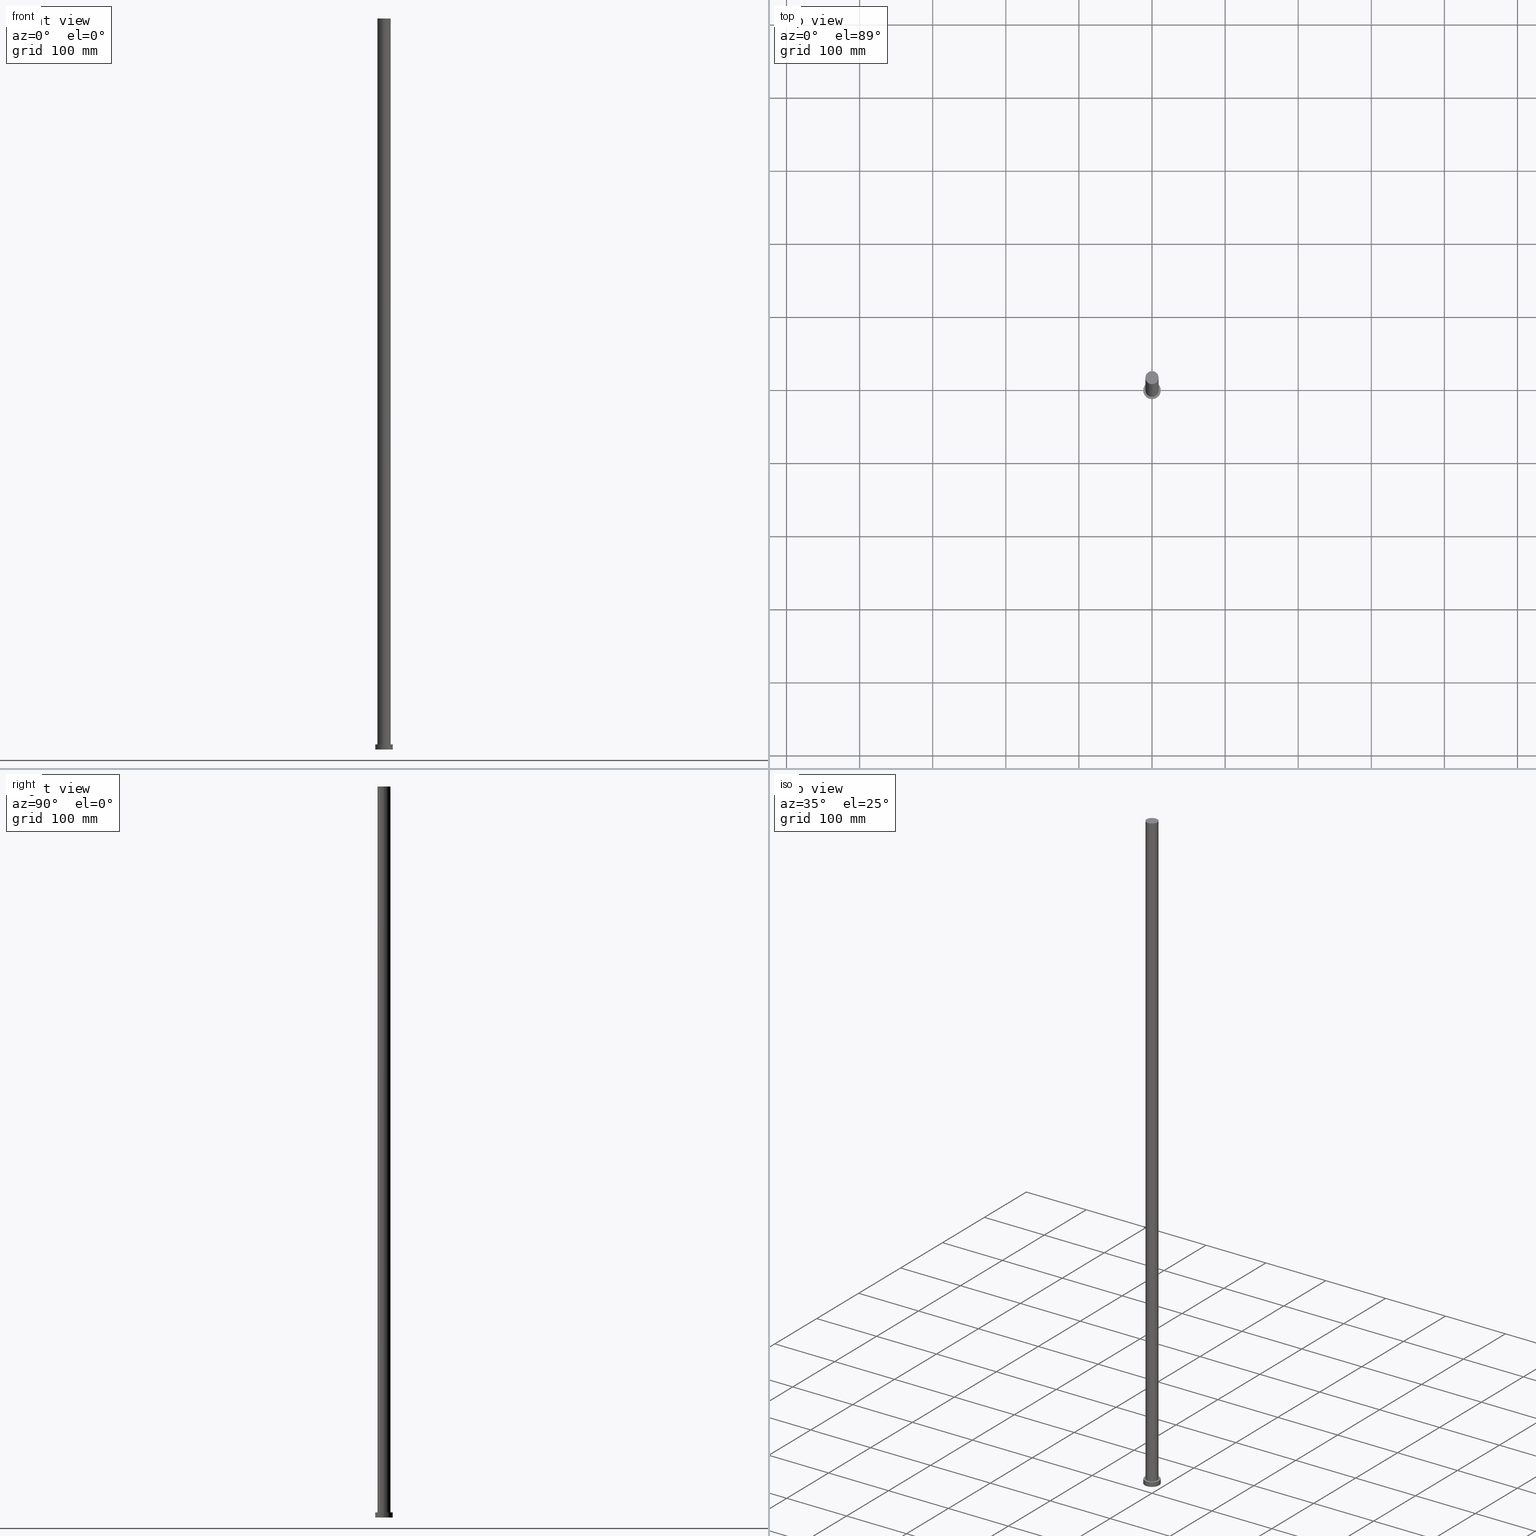
[diagram: canonical four-view strip — front | top / right | iso, engineering-drawing reading convention]
A machine part, canonical four-view strip (front | top / right | iso — engineering-drawing reading convention). The complete STEP part file that produces these views, byte-faithful:
ISO-10303-21;
HEADER;
FILE_DESCRIPTION (( 'STEP AP203' ),
    '1' );
FILE_NAME ('8656.STEP',
    '2023-02-12T10:33:47',
    ( '' ),
    ( '' ),
    'SwSTEP 2.0',
    'SolidWorks 2019',
    '' );
FILE_SCHEMA (( 'CONFIG_CONTROL_DESIGN' ));
ENDSEC;

DATA;
#1 = PERSON_AND_ORGANIZATION_ROLE ( 'classification_officer' ) ;
#2 = ORIENTED_EDGE ( 'NONE', *, *, #97, .T. ) ;
#3 = COORDINATED_UNIVERSAL_TIME_OFFSET ( 1, 0, .AHEAD. ) ;
#4 = EDGE_LOOP ( 'NONE', ( #244, #44 ) ) ;
#5 = APPLICATION_PROTOCOL_DEFINITION ( 'international standard', 'config_control_design', 1994, #65 ) ;
#6 = LOCAL_TIME ( 11, 33, 47.00000000000000000, #219 ) ;
#7 = ORIENTED_EDGE ( 'NONE', *, *, #205, .T. ) ;
#8 = COORDINATED_UNIVERSAL_TIME_OFFSET ( 1, 0, .AHEAD. ) ;
#9 = CIRCLE ( 'NONE', #123, 12.00000000000000178 ) ;
#10 = CARTESIAN_POINT ( 'NONE',  ( 12.00000000000000178, 1.469576158976824144E-15, 7.000000000000000000 ) ) ;
#11 = CARTESIAN_POINT ( 'NONE',  ( 0.000000000000000000, 0.000000000000000000, 1000.000000000000000 ) ) ;
#12 =( NAMED_UNIT ( * ) PLANE_ANGLE_UNIT ( ) SI_UNIT ( $, .RADIAN. ) );
#13 = DIRECTION ( 'NONE',  ( 0.000000000000000000, 0.000000000000000000, 1.000000000000000000 ) ) ;
#14 = DIRECTION ( 'NONE',  ( 1.000000000000000000, 0.000000000000000000, 0.000000000000000000 ) ) ;
#15 = AXIS2_PLACEMENT_3D ( 'NONE', #197, #146, #127 ) ;
#16 = PERSON_AND_ORGANIZATION_ROLE ( 'creator' ) ;
#17 = EDGE_LOOP ( 'NONE', ( #87, #218 ) ) ;
#18 = DATE_TIME_ROLE ( 'creation_date' ) ;
#19 = ORIENTED_EDGE ( 'NONE', *, *, #28, .F. ) ;
#20 = CC_DESIGN_DATE_AND_TIME_ASSIGNMENT ( #186, #18, ( #107 ) ) ;
#21 = PERSON_AND_ORGANIZATION ( #122, #220 ) ;
#22 = ORIENTED_EDGE ( 'NONE', *, *, #58, .F. ) ;
#23 = ORIENTED_EDGE ( 'NONE', *, *, #245, .T. ) ;
#24 = LINE ( 'NONE', #77, #118 ) ;
#25 = AXIS2_PLACEMENT_3D ( 'NONE', #11, #52, #142 ) ;
#26 = FACE_OUTER_BOUND ( 'NONE', #89, .T. ) ;
#27 = CARTESIAN_POINT ( 'NONE',  ( 9.000000000000000000, 1.102182119232617714E-15, 1000.000000000000000 ) ) ;
#28 = EDGE_CURVE ( 'NONE', #184, #47, #191, .T. ) ;
#29 = DIRECTION ( 'NONE',  ( -1.000000000000000000, 0.000000000000000000, 0.000000000000000000 ) ) ;
#30 = FACE_BOUND ( 'NONE', #4, .T. ) ;
#31 = LOCAL_TIME ( 11, 33, 47.00000000000000000, #8 ) ;
#32 = CARTESIAN_POINT ( 'NONE',  ( 0.000000000000000000, 0.000000000000000000, 0.000000000000000000 ) ) ;
#33 = CC_DESIGN_DATE_AND_TIME_ASSIGNMENT ( #241, #40, ( #62 ) ) ;
#34 = AXIS2_PLACEMENT_3D ( 'NONE', #81, #234, #55 ) ;
#35 = CIRCLE ( 'NONE', #125, 12.00000000000000178 ) ;
#36 = CARTESIAN_POINT ( 'NONE',  ( -9.000000000000000000, 0.000000000000000000, 1000.000000000000000 ) ) ;
#37 = DIRECTION ( 'NONE',  ( 0.000000000000000000, 0.000000000000000000, 1.000000000000000000 ) ) ;
#38 = APPROVAL_DATE_TIME ( #135, #137 ) ;
#39 = CC_DESIGN_APPROVAL ( #233, ( #62 ) ) ;
#40 = DATE_TIME_ROLE ( 'classification_date' ) ;
#41 = EDGE_CURVE ( 'NONE', #187, #225, #54, .T. ) ;
#42 = APPROVAL_STATUS ( 'not_yet_approved' ) ;
#43 = PERSON_AND_ORGANIZATION ( #122, #220 ) ;
#44 = ORIENTED_EDGE ( 'NONE', *, *, #240, .F. ) ;
#45 = AXIS2_PLACEMENT_3D ( 'NONE', #163, #13, #100 ) ;
#46 = AXIS2_PLACEMENT_3D ( 'NONE', #144, #164, #63 ) ;
#47 = VERTEX_POINT ( 'NONE', #138 ) ;
#48 = DIRECTION ( 'NONE',  ( -0.000000000000000000, -0.000000000000000000, -1.000000000000000000 ) ) ;
#49 = CARTESIAN_POINT ( 'NONE',  ( 0.000000000000000000, 0.000000000000000000, 1000.000000000000000 ) ) ;
#50 = AXIS2_PLACEMENT_3D ( 'NONE', #230, #179, #60 ) ;
#51 = CC_DESIGN_APPROVAL ( #137, ( #56 ) ) ;
#52 = DIRECTION ( 'NONE',  ( 0.000000000000000000, 0.000000000000000000, 1.000000000000000000 ) ) ;
#53 = UNCERTAINTY_MEASURE_WITH_UNIT (LENGTH_MEASURE( 1.000000000000000082E-05 ), #98, 'distance_accuracy_value', 'NONE');
#54 = LINE ( 'NONE', #173, #201 ) ;
#55 = DIRECTION ( 'NONE',  ( -1.000000000000000000, 0.000000000000000000, 0.000000000000000000 ) ) ;
#56 = PRODUCT_DEFINITION_FORMATION_WITH_SPECIFIED_SOURCE ( 'LIBOVOLN�', '', #57, .NOT_KNOWN. ) ;
#57 = PRODUCT ( '8656', '8656', '', ( #108 ) ) ;
#58 = EDGE_CURVE ( 'NONE', #223, #133, #177, .T. ) ;
#59 = DIRECTION ( 'NONE',  ( 1.000000000000000000, 0.000000000000000000, 0.000000000000000000 ) ) ;
#60 = DIRECTION ( 'NONE',  ( 1.000000000000000000, 0.000000000000000000, 0.000000000000000000 ) ) ;
#61 = PLANE ( 'NONE',  #185 ) ;
#62 = SECURITY_CLASSIFICATION ( '', '', #116 ) ;
#63 = DIRECTION ( 'NONE',  ( -1.000000000000000000, 0.000000000000000000, 0.000000000000000000 ) ) ;
#64 = COORDINATED_UNIVERSAL_TIME_OFFSET ( 1, 0, .AHEAD. ) ;
#65 = APPLICATION_CONTEXT ( 'configuration controlled 3d designs of mechanical parts and assemblies' ) ;
#66 = CC_DESIGN_PERSON_AND_ORGANIZATION_ASSIGNMENT ( #105, #1, ( #62 ) ) ;
#67 = CALENDAR_DATE ( 2023, 12, 2 ) ;
#68 = ORIENTED_EDGE ( 'NONE', *, *, #129, .T. ) ;
#69 = ORIENTED_EDGE ( 'NONE', *, *, #28, .T. ) ;
#70 = ORIENTED_EDGE ( 'NONE', *, *, #75, .F. ) ;
#71 = AXIS2_PLACEMENT_3D ( 'NONE', #161, #158, #178 ) ;
#72 = ORIENTED_EDGE ( 'NONE', *, *, #205, .F. ) ;
#73 = CYLINDRICAL_SURFACE ( 'NONE', #99, 12.00000000000000178 ) ;
#74 = APPROVAL_ROLE ( '' ) ;
#75 = EDGE_CURVE ( 'NONE', #223, #187, #94, .T. ) ;
#76 = DESIGN_CONTEXT ( 'detailed design', #65, 'design' ) ;
#77 = CARTESIAN_POINT ( 'NONE',  ( -12.00000000000000178, 0.000000000000000000, 7.000000000000000000 ) ) ;
#78 = CARTESIAN_POINT ( 'NONE',  ( -12.00000000000000178, 0.000000000000000000, 7.000000000000000000 ) ) ;
#79 = CLOSED_SHELL ( 'NONE', ( #172, #181, #85, #119, #229, #93, #212 ) ) ;
#80 = FACE_OUTER_BOUND ( 'NONE', #153, .T. ) ;
#81 = CARTESIAN_POINT ( 'NONE',  ( 0.000000000000000000, 0.000000000000000000, 1000.000000000000000 ) ) ;
#82 = CC_DESIGN_PERSON_AND_ORGANIZATION_ASSIGNMENT ( #248, #128, ( #56 ) ) ;
#83 = FACE_OUTER_BOUND ( 'NONE', #109, .T. ) ;
#84 = LOCAL_TIME ( 11, 33, 47.00000000000000000, #64 ) ;
#85 = ADVANCED_FACE ( 'NONE', ( #206 ), #73, .T. ) ;
#86 = APPROVAL_DATE_TIME ( #222, #134 ) ;
#87 = ORIENTED_EDGE ( 'NONE', *, *, #175, .F. ) ;
#88 = APPLICATION_PROTOCOL_DEFINITION ( 'international standard', 'config_control_design', 1994, #96 ) ;
#89 = EDGE_LOOP ( 'NONE', ( #68, #7 ) ) ;
#90 = ORIENTED_EDGE ( 'NONE', *, *, #129, .F. ) ;
#91 = ORIENTED_EDGE ( 'NONE', *, *, #75, .T. ) ;
#92 = CALENDAR_DATE ( 2023, 12, 2 ) ;
#93 = ADVANCED_FACE ( 'NONE', ( #117 ), #157, .T. ) ;
#94 = CIRCLE ( 'NONE', #25, 9.000000000000000000 ) ;
#95 =( GEOMETRIC_REPRESENTATION_CONTEXT ( 3 ) GLOBAL_UNCERTAINTY_ASSIGNED_CONTEXT ( ( #53 ) ) GLOBAL_UNIT_ASSIGNED_CONTEXT ( ( #98, #12, #196 ) ) REPRESENTATION_CONTEXT ( 'NONE', 'WORKASPACE' ) );
#96 = APPLICATION_CONTEXT ( 'configuration controlled 3d designs of mechanical parts and assemblies' ) ;
#97 = EDGE_CURVE ( 'NONE', #168, #203, #24, .T. ) ;
#98 =( LENGTH_UNIT ( ) NAMED_UNIT ( * ) SI_UNIT ( .MILLI., .METRE. ) );
#99 = AXIS2_PLACEMENT_3D ( 'NONE', #155, #143, #29 ) ;
#100 = DIRECTION ( 'NONE',  ( 1.000000000000000000, 0.000000000000000000, 0.000000000000000000 ) ) ;
#101 = AXIS2_PLACEMENT_3D ( 'NONE', #169, #165, #111 ) ;
#102 = CC_DESIGN_PERSON_AND_ORGANIZATION_ASSIGNMENT ( #21, #199, ( #107 ) ) ;
#103 = DIRECTION ( 'NONE',  ( 1.000000000000000000, 0.000000000000000000, -0.000000000000000000 ) ) ;
#104 = CARTESIAN_POINT ( 'NONE',  ( 0.000000000000000000, 0.000000000000000000, 7.000000000000000000 ) ) ;
#105 = PERSON_AND_ORGANIZATION ( #122, #220 ) ;
#106 = ORIENTED_EDGE ( 'NONE', *, *, #41, .F. ) ;
#107 = PRODUCT_DEFINITION ( 'NEZN�M�', '', #56, #76 ) ;
#108 = MECHANICAL_CONTEXT ( 'NONE', #96, 'mechanical' ) ;
#109 = EDGE_LOOP ( 'NONE', ( #70, #183, #150, #106 ) ) ;
#110 = PERSON_AND_ORGANIZATION ( #122, #220 ) ;
#111 = DIRECTION ( 'NONE',  ( 1.000000000000000000, 0.000000000000000000, 0.000000000000000000 ) ) ;
#112 = EDGE_LOOP ( 'NONE', ( #171, #91 ) ) ;
#113 = CARTESIAN_POINT ( 'NONE',  ( 0.000000000000000000, 0.000000000000000000, 7.000000000000000000 ) ) ;
#114 = PRODUCT_RELATED_PRODUCT_CATEGORY ( 'detail', '', ( #57 ) ) ;
#115 = DIRECTION ( 'NONE',  ( 0.000000000000000000, 0.000000000000000000, 1.000000000000000000 ) ) ;
#116 = SECURITY_CLASSIFICATION_LEVEL ( 'unclassified' ) ;
#117 = FACE_OUTER_BOUND ( 'NONE', #226, .T. ) ;
#118 = VECTOR ( 'NONE', #211, 1000.000000000000000 ) ;
#119 = ADVANCED_FACE ( 'NONE', ( #30, #26 ), #139, .T. ) ;
#120 = DIRECTION ( 'NONE',  ( 0.000000000000000000, 0.000000000000000000, 1.000000000000000000 ) ) ;
#121 = DIRECTION ( 'NONE',  ( 0.000000000000000000, 0.000000000000000000, 1.000000000000000000 ) ) ;
#122 = PERSON ( 'NEUR�EN�', 'NEUR�EN�', 'NEUR�EN�', ('NEUR�EN�'), ('NEUR�EN�'), ('NEUR�EN�') ) ;
#123 = AXIS2_PLACEMENT_3D ( 'NONE', #193, #37, #238 ) ;
#124 = CYLINDRICAL_SURFACE ( 'NONE', #46, 12.00000000000000178 ) ;
#125 = AXIS2_PLACEMENT_3D ( 'NONE', #32, #120, #59 ) ;
#126 = PLANE ( 'NONE',  #15 ) ;
#127 = DIRECTION ( 'NONE',  ( 1.000000000000000000, 0.000000000000000000, -0.000000000000000000 ) ) ;
#128 = PERSON_AND_ORGANIZATION_ROLE ( 'design_supplier' ) ;
#129 = EDGE_CURVE ( 'NONE', #168, #184, #207, .T. ) ;
#130 = ORIENTED_EDGE ( 'NONE', *, *, #159, .F. ) ;
#131 = PERSON_AND_ORGANIZATION ( #122, #220 ) ;
#132 = SHAPE_DEFINITION_REPRESENTATION ( #194, #162 ) ;
#133 = VERTEX_POINT ( 'NONE', #160 ) ;
#134 = APPROVAL ( #42, 'NEUR�EN�' ) ;
#135 = DATE_AND_TIME ( #239, #31 ) ;
#136 = ORIENTED_EDGE ( 'NONE', *, *, #175, .T. ) ;
#137 = APPROVAL ( #210, 'NEUR�EN�' ) ;
#138 = CARTESIAN_POINT ( 'NONE',  ( 12.00000000000000178, 1.469576158976824144E-15, 0.000000000000000000 ) ) ;
#139 = PLANE ( 'NONE',  #152 ) ;
#140 = AXIS2_PLACEMENT_3D ( 'NONE', #49, #251, #176 ) ;
#141 = PERSON_AND_ORGANIZATION_ROLE ( 'design_owner' ) ;
#142 = DIRECTION ( 'NONE',  ( 1.000000000000000000, 0.000000000000000000, 0.000000000000000000 ) ) ;
#143 = DIRECTION ( 'NONE',  ( -0.000000000000000000, -0.000000000000000000, -1.000000000000000000 ) ) ;
#144 = CARTESIAN_POINT ( 'NONE',  ( 0.000000000000000000, 0.000000000000000000, 7.000000000000000000 ) ) ;
#145 = DIRECTION ( 'NONE',  ( 0.000000000000000000, 0.000000000000000000, 1.000000000000000000 ) ) ;
#146 = DIRECTION ( 'NONE',  ( 0.000000000000000000, 0.000000000000000000, 1.000000000000000000 ) ) ;
#147 = CARTESIAN_POINT ( 'NONE',  ( -9.000000000000000000, 0.000000000000000000, 7.000000000000000000 ) ) ;
#148 = VECTOR ( 'NONE', #228, 1000.000000000000000 ) ;
#149 = DATE_AND_TIME ( #67, #249 ) ;
#150 = ORIENTED_EDGE ( 'NONE', *, *, #240, .T. ) ;
#151 = APPROVAL_ROLE ( '' ) ;
#152 = AXIS2_PLACEMENT_3D ( 'NONE', #113, #115, #190 ) ;
#153 = EDGE_LOOP ( 'NONE', ( #72, #69, #188, #200 ) ) ;
#154 = APPROVAL_PERSON_ORGANIZATION ( #43, #137, #74 ) ;
#155 = CARTESIAN_POINT ( 'NONE',  ( 0.000000000000000000, 0.000000000000000000, 7.000000000000000000 ) ) ;
#156 = DIRECTION ( 'NONE',  ( -0.000000000000000000, -0.000000000000000000, -1.000000000000000000 ) ) ;
#157 = CYLINDRICAL_SURFACE ( 'NONE', #140, 9.000000000000000000 ) ;
#158 = DIRECTION ( 'NONE',  ( 0.000000000000000000, 0.000000000000000000, 1.000000000000000000 ) ) ;
#159 = EDGE_CURVE ( 'NONE', #187, #223, #235, .T. ) ;
#160 = CARTESIAN_POINT ( 'NONE',  ( 9.000000000000000000, 1.102182119232617714E-15, 7.000000000000000000 ) ) ;
#161 = CARTESIAN_POINT ( 'NONE',  ( 0.000000000000000000, 0.000000000000000000, 7.000000000000000000 ) ) ;
#162 = ADVANCED_BREP_SHAPE_REPRESENTATION ( '8656', ( #246, #101 ), #95 ) ;
#163 = CARTESIAN_POINT ( 'NONE',  ( 0.000000000000000000, 0.000000000000000000, 7.000000000000000000 ) ) ;
#164 = DIRECTION ( 'NONE',  ( -0.000000000000000000, -0.000000000000000000, -1.000000000000000000 ) ) ;
#165 = DIRECTION ( 'NONE',  ( 0.000000000000000000, 0.000000000000000000, 1.000000000000000000 ) ) ;
#166 = CALENDAR_DATE ( 2023, 12, 2 ) ;
#167 = APPROVAL_ROLE ( '' ) ;
#168 = VERTEX_POINT ( 'NONE', #78 ) ;
#169 = CARTESIAN_POINT ( 'NONE',  ( 0.000000000000000000, 0.000000000000000000, 0.000000000000000000 ) ) ;
#170 = EDGE_LOOP ( 'NONE', ( #19, #90, #2, #136 ) ) ;
#171 = ORIENTED_EDGE ( 'NONE', *, *, #159, .T. ) ;
#172 = ADVANCED_FACE ( 'NONE', ( #83 ), #216, .T. ) ;
#173 = CARTESIAN_POINT ( 'NONE',  ( -9.000000000000000000, 0.000000000000000000, 1000.000000000000000 ) ) ;
#174 = PERSON_AND_ORGANIZATION ( #122, #220 ) ;
#175 = EDGE_CURVE ( 'NONE', #203, #47, #9, .T. ) ;
#176 = DIRECTION ( 'NONE',  ( -1.000000000000000000, 0.000000000000000000, 0.000000000000000000 ) ) ;
#177 = LINE ( 'NONE', #27, #148 ) ;
#178 = DIRECTION ( 'NONE',  ( 1.000000000000000000, 0.000000000000000000, 0.000000000000000000 ) ) ;
#179 = DIRECTION ( 'NONE',  ( 0.000000000000000000, 0.000000000000000000, 1.000000000000000000 ) ) ;
#180 = ORIENTED_EDGE ( 'NONE', *, *, #41, .T. ) ;
#181 = ADVANCED_FACE ( 'NONE', ( #80 ), #124, .T. ) ;
#182 = PERSON_AND_ORGANIZATION ( #122, #220 ) ;
#183 = ORIENTED_EDGE ( 'NONE', *, *, #58, .T. ) ;
#184 = VERTEX_POINT ( 'NONE', #232 ) ;
#185 = AXIS2_PLACEMENT_3D ( 'NONE', #254, #145, #103 ) ;
#186 = DATE_AND_TIME ( #92, #84 ) ;
#187 = VERTEX_POINT ( 'NONE', #36 ) ;
#188 = ORIENTED_EDGE ( 'NONE', *, *, #250, .T. ) ;
#189 = CC_DESIGN_PERSON_AND_ORGANIZATION_ASSIGNMENT ( #174, #16, ( #56 ) ) ;
#190 = DIRECTION ( 'NONE',  ( 1.000000000000000000, 0.000000000000000000, -0.000000000000000000 ) ) ;
#191 = LINE ( 'NONE', #10, #252 ) ;
#192 = CC_DESIGN_APPROVAL ( #134, ( #107 ) ) ;
#193 = CARTESIAN_POINT ( 'NONE',  ( 0.000000000000000000, 0.000000000000000000, 0.000000000000000000 ) ) ;
#194 = PRODUCT_DEFINITION_SHAPE ( 'NONE', 'NONE',  #107 ) ;
#195 = CARTESIAN_POINT ( 'NONE',  ( -12.00000000000000178, 0.000000000000000000, 0.000000000000000000 ) ) ;
#196 =( NAMED_UNIT ( * ) SI_UNIT ( $, .STERADIAN. ) SOLID_ANGLE_UNIT ( ) );
#197 = CARTESIAN_POINT ( 'NONE',  ( 0.000000000000000000, 0.000000000000000000, 0.000000000000000000 ) ) ;
#198 = CARTESIAN_POINT ( 'NONE',  ( 0.000000000000000000, 0.000000000000000000, 7.000000000000000000 ) ) ;
#199 = PERSON_AND_ORGANIZATION_ROLE ( 'creator' ) ;
#200 = ORIENTED_EDGE ( 'NONE', *, *, #97, .F. ) ;
#201 = VECTOR ( 'NONE', #156, 1000.000000000000000 ) ;
#202 = APPROVAL_STATUS ( 'not_yet_approved' ) ;
#203 = VERTEX_POINT ( 'NONE', #195 ) ;
#204 = CIRCLE ( 'NONE', #45, 12.00000000000000178 ) ;
#205 = EDGE_CURVE ( 'NONE', #184, #168, #204, .T. ) ;
#206 = FACE_OUTER_BOUND ( 'NONE', #170, .T. ) ;
#207 = CIRCLE ( 'NONE', #71, 12.00000000000000178 ) ;
#208 = CC_DESIGN_PERSON_AND_ORGANIZATION_ASSIGNMENT ( #182, #141, ( #57 ) ) ;
#209 = CIRCLE ( 'NONE', #227, 9.000000000000000000 ) ;
#210 = APPROVAL_STATUS ( 'not_yet_approved' ) ;
#211 = DIRECTION ( 'NONE',  ( -0.000000000000000000, -0.000000000000000000, -1.000000000000000000 ) ) ;
#212 = ADVANCED_FACE ( 'NONE', ( #231 ), #61, .T. ) ;
#213 = DIRECTION ( 'NONE',  ( 1.000000000000000000, 0.000000000000000000, 0.000000000000000000 ) ) ;
#214 = CARTESIAN_POINT ( 'NONE',  ( 9.000000000000000000, 1.102182119232617714E-15, 1000.000000000000000 ) ) ;
#215 = AXIS2_PLACEMENT_3D ( 'NONE', #198, #121, #14 ) ;
#216 = CYLINDRICAL_SURFACE ( 'NONE', #34, 9.000000000000000000 ) ;
#217 = CALENDAR_DATE ( 2023, 12, 2 ) ;
#218 = ORIENTED_EDGE ( 'NONE', *, *, #250, .F. ) ;
#219 = COORDINATED_UNIVERSAL_TIME_OFFSET ( 1, 0, .AHEAD. ) ;
#220 = ORGANIZATION ( 'NEUR�EN�', 'NEUR�EN�', '' ) ;
#221 = APPROVAL_DATE_TIME ( #149, #233 ) ;
#222 = DATE_AND_TIME ( #217, #224 ) ;
#223 = VERTEX_POINT ( 'NONE', #214 ) ;
#224 = LOCAL_TIME ( 11, 33, 47.00000000000000000, #3 ) ;
#225 = VERTEX_POINT ( 'NONE', #147 ) ;
#226 = EDGE_LOOP ( 'NONE', ( #22, #130, #180, #23 ) ) ;
#227 = AXIS2_PLACEMENT_3D ( 'NONE', #104, #253, #213 ) ;
#228 = DIRECTION ( 'NONE',  ( -0.000000000000000000, -0.000000000000000000, -1.000000000000000000 ) ) ;
#229 = ADVANCED_FACE ( 'NONE', ( #255 ), #126, .F. ) ;
#230 = CARTESIAN_POINT ( 'NONE',  ( 0.000000000000000000, 0.000000000000000000, 1000.000000000000000 ) ) ;
#231 = FACE_OUTER_BOUND ( 'NONE', #112, .T. ) ;
#232 = CARTESIAN_POINT ( 'NONE',  ( 12.00000000000000178, 1.469576158976824144E-15, 7.000000000000000000 ) ) ;
#233 = APPROVAL ( #202, 'NEUR�EN�' ) ;
#234 = DIRECTION ( 'NONE',  ( -0.000000000000000000, -0.000000000000000000, -1.000000000000000000 ) ) ;
#235 = CIRCLE ( 'NONE', #50, 9.000000000000000000 ) ;
#236 = APPROVAL_PERSON_ORGANIZATION ( #131, #233, #167 ) ;
#237 = APPROVAL_PERSON_ORGANIZATION ( #110, #134, #151 ) ;
#238 = DIRECTION ( 'NONE',  ( 1.000000000000000000, 0.000000000000000000, 0.000000000000000000 ) ) ;
#239 = CALENDAR_DATE ( 2023, 12, 2 ) ;
#240 = EDGE_CURVE ( 'NONE', #133, #225, #247, .T. ) ;
#241 = DATE_AND_TIME ( #166, #6 ) ;
#242 = COORDINATED_UNIVERSAL_TIME_OFFSET ( 1, 0, .AHEAD. ) ;
#243 = CC_DESIGN_SECURITY_CLASSIFICATION ( #62, ( #56 ) ) ;
#244 = ORIENTED_EDGE ( 'NONE', *, *, #245, .F. ) ;
#245 = EDGE_CURVE ( 'NONE', #225, #133, #209, .T. ) ;
#246 = MANIFOLD_SOLID_BREP ( 'P�idat vysunut�m3', #79 ) ;
#247 = CIRCLE ( 'NONE', #215, 9.000000000000000000 ) ;
#248 = PERSON_AND_ORGANIZATION ( #122, #220 ) ;
#249 = LOCAL_TIME ( 11, 33, 47.00000000000000000, #242 ) ;
#250 = EDGE_CURVE ( 'NONE', #47, #203, #35, .T. ) ;
#251 = DIRECTION ( 'NONE',  ( -0.000000000000000000, -0.000000000000000000, -1.000000000000000000 ) ) ;
#252 = VECTOR ( 'NONE', #48, 1000.000000000000000 ) ;
#253 = DIRECTION ( 'NONE',  ( 0.000000000000000000, 0.000000000000000000, 1.000000000000000000 ) ) ;
#254 = CARTESIAN_POINT ( 'NONE',  ( 0.000000000000000000, 0.000000000000000000, 1000.000000000000000 ) ) ;
#255 = FACE_OUTER_BOUND ( 'NONE', #17, .T. ) ;
ENDSEC;
END-ISO-10303-21;
